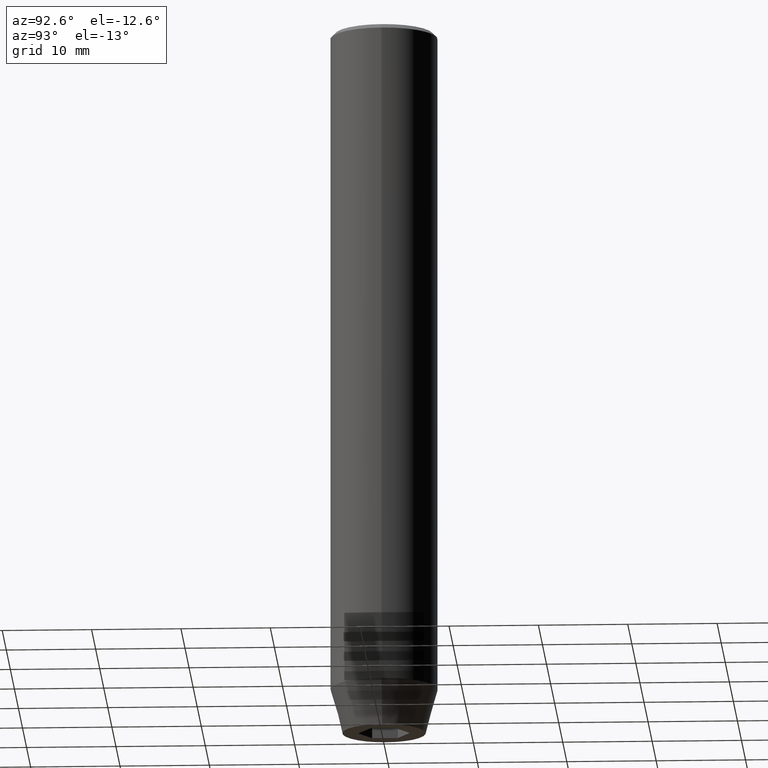
[diagram: clean part render]
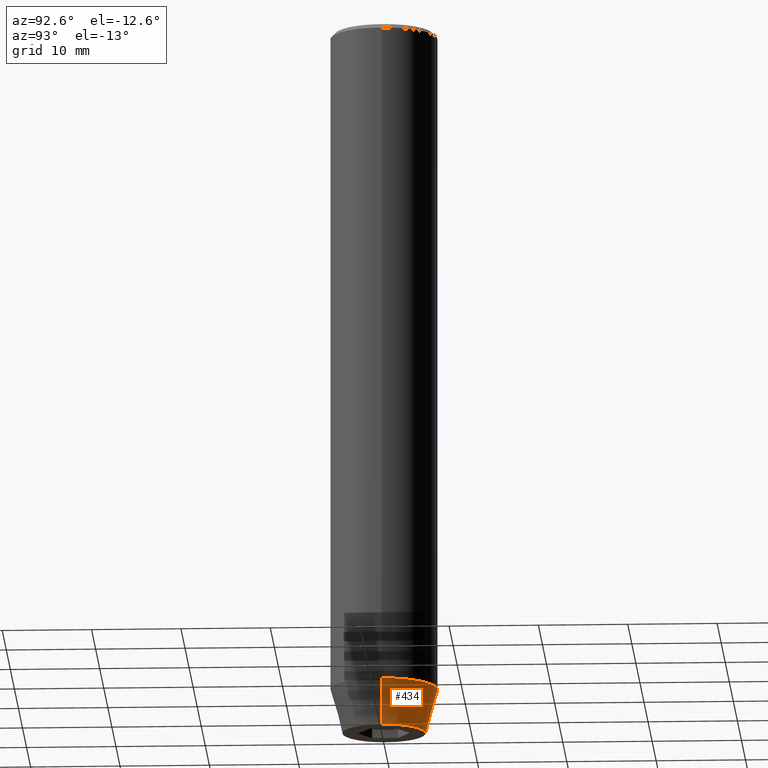
[diagram: same view with one face highlighted and labeled with its STEP entity id]
A machine part, auxiliary view. The second image highlights one B-rep face of the part: STEP entity #434.
In plain terms, the highlighted conical surface has half-angle 15 deg.
Its self-contained STEP definition (entity closure, byte-faithful):
#5 = CIRCLE ( 'NONE', #300, 6.000000000000000000 ) ;
#14 = CIRCLE ( 'NONE', #209, 4.660254037844384634 ) ;
#18 = CARTESIAN_POINT ( 'NONE',  ( 0.000000000000000000, 0.000000000000000000, -80.00000000000001421 ) ) ;
#58 = CARTESIAN_POINT ( 'NONE',  ( 4.660254037844384634, 0.000000000000000000, -80.00000000000001421 ) ) ;
#61 = DIRECTION ( 'NONE',  ( -0.2588190451025209060, 3.169619151431766790E-17, 0.9659258262890682012 ) ) ;
#65 = EDGE_CURVE ( 'NONE', #313, #410, #284, .T. ) ;
#70 = DIRECTION ( 'NONE',  ( 1.000000000000000000, 0.000000000000000000, 0.000000000000000000 ) ) ;
#86 = DIRECTION ( 'NONE',  ( -0.000000000000000000, -0.000000000000000000, 1.000000000000000000 ) ) ;
#90 = CONICAL_SURFACE ( 'NONE', #236, 6.000000000000000000, 0.2617993877991495744 ) ;
#103 = ORIENTED_EDGE ( 'NONE', *, *, #216, .T. ) ;
#112 = FACE_OUTER_BOUND ( 'NONE', #262, .T. ) ;
#122 = CARTESIAN_POINT ( 'NONE',  ( -6.000000000000000000, 7.347880794884119736E-16, -75.00000000000001421 ) ) ;
#126 = ORIENTED_EDGE ( 'NONE', *, *, #553, .F. ) ;
#164 = VECTOR ( 'NONE', #61, 1000.000000000000000 ) ;
#168 = VERTEX_POINT ( 'NONE', #435 ) ;
#172 = LINE ( 'NONE', #201, #164 ) ;
#185 = ORIENTED_EDGE ( 'NONE', *, *, #65, .F. ) ;
#195 = DIRECTION ( 'NONE',  ( -0.000000000000000000, -0.000000000000000000, 1.000000000000000000 ) ) ;
#201 = CARTESIAN_POINT ( 'NONE',  ( -6.000000000000000000, 7.347880794884119736E-16, -75.00000000000001421 ) ) ;
#209 = AXIS2_PLACEMENT_3D ( 'NONE', #18, #195, #379 ) ;
#216 = EDGE_CURVE ( 'NONE', #168, #527, #172, .T. ) ;
#236 = AXIS2_PLACEMENT_3D ( 'NONE', #386, #465, #70 ) ;
#239 = ORIENTED_EDGE ( 'NONE', *, *, #447, .T. ) ;
#259 = DIRECTION ( 'NONE',  ( 1.000000000000000000, 0.000000000000000000, 0.000000000000000000 ) ) ;
#262 = EDGE_LOOP ( 'NONE', ( #239, #103, #126, #185 ) ) ;
#284 = LINE ( 'NONE', #505, #459 ) ;
#300 = AXIS2_PLACEMENT_3D ( 'NONE', #484, #86, #259 ) ;
#313 = VERTEX_POINT ( 'NONE', #58 ) ;
#379 = DIRECTION ( 'NONE',  ( 1.000000000000000000, 0.000000000000000000, 0.000000000000000000 ) ) ;
#386 = CARTESIAN_POINT ( 'NONE',  ( 0.000000000000000000, 0.000000000000000000, -75.00000000000001421 ) ) ;
#410 = VERTEX_POINT ( 'NONE', #517 ) ;
#434 = ADVANCED_FACE ( 'NONE', ( #112 ), #90, .T. ) ;
#435 = CARTESIAN_POINT ( 'NONE',  ( -4.660254037844384634, 6.527522992771886302E-16, -80.00000000000001421 ) ) ;
#447 = EDGE_CURVE ( 'NONE', #313, #168, #14, .T. ) ;
#457 = DIRECTION ( 'NONE',  ( 0.2588190451025209060, 0.000000000000000000, 0.9659258262890682012 ) ) ;
#459 = VECTOR ( 'NONE', #457, 1000.000000000000000 ) ;
#465 = DIRECTION ( 'NONE',  ( -0.000000000000000000, -0.000000000000000000, 1.000000000000000000 ) ) ;
#484 = CARTESIAN_POINT ( 'NONE',  ( 0.000000000000000000, 0.000000000000000000, -75.00000000000001421 ) ) ;
#505 = CARTESIAN_POINT ( 'NONE',  ( 6.000000000000000000, 0.000000000000000000, -75.00000000000001421 ) ) ;
#517 = CARTESIAN_POINT ( 'NONE',  ( 6.000000000000000000, 0.000000000000000000, -75.00000000000001421 ) ) ;
#527 = VERTEX_POINT ( 'NONE', #122 ) ;
#553 = EDGE_CURVE ( 'NONE', #410, #527, #5, .T. ) ;